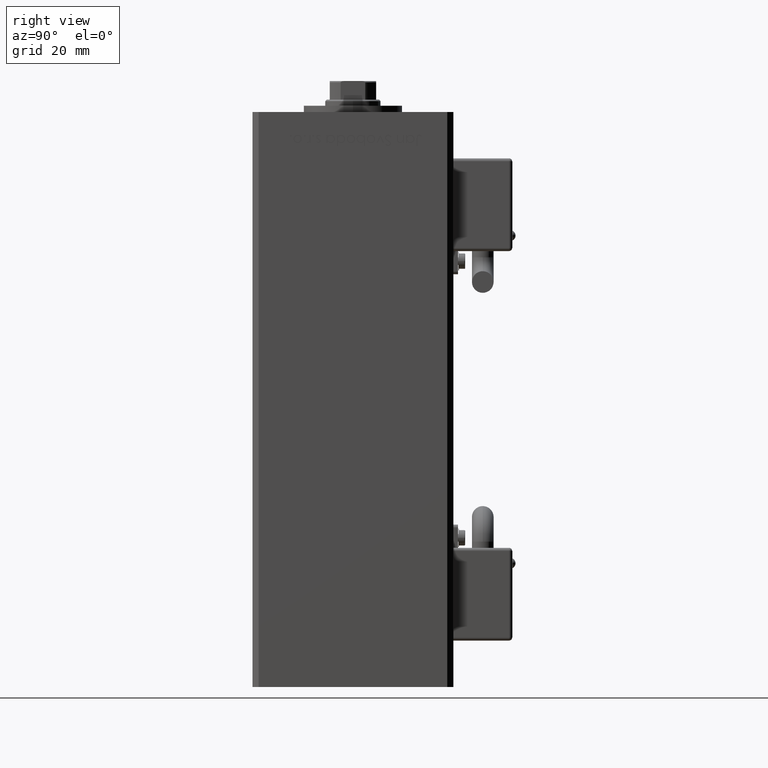
[diagram: clean part render]
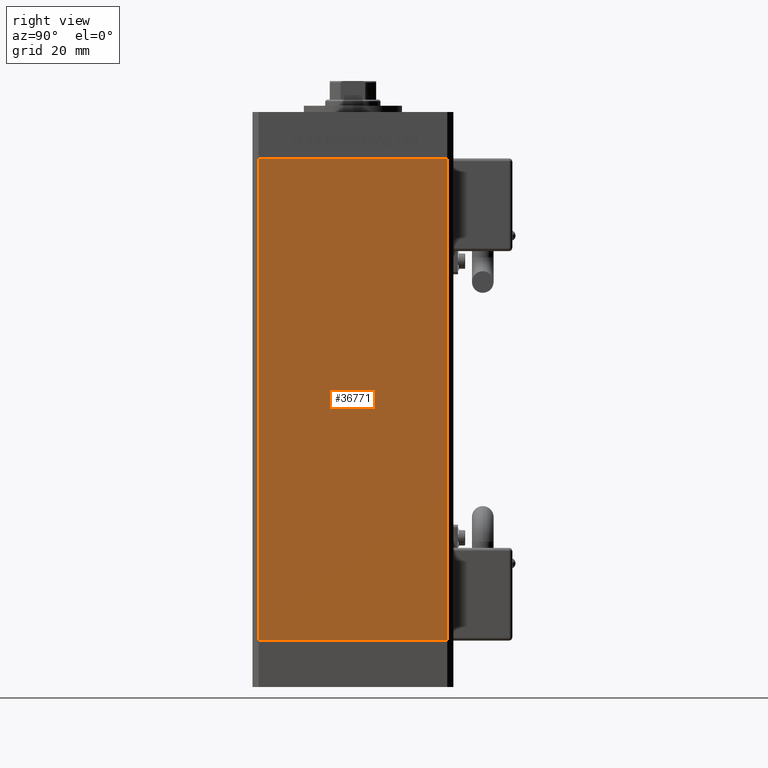
[diagram: same view with one face highlighted and labeled with its STEP entity id]
A machine part, right view. The second image highlights one B-rep face of the part: STEP entity #36771.
In plain terms, the highlighted planar face has unit normal (1, -0, 0).
Its self-contained STEP definition (entity closure, byte-faithful):
#183 = CARTESIAN_POINT ( 'NONE',  ( 37.50000000000000711, 30.50000000000000000, 156.0000000000000000 ) ) ;
#501 = ORIENTED_EDGE ( 'NONE', *, *, #16619, .T. ) ;
#503 = FACE_OUTER_BOUND ( 'NONE', #36705, .T. ) ;
#4969 = PLANE ( 'NONE',  #8134 ) ;
#5512 = VERTEX_POINT ( 'NONE', #34273 ) ;
#7882 = VERTEX_POINT ( 'NONE', #40748 ) ;
#8134 = AXIS2_PLACEMENT_3D ( 'NONE', #17248, #47683, #42677 ) ;
#8351 = VECTOR ( 'NONE', #39550, 1000.000000000000000 ) ;
#15202 = LINE ( 'NONE', #32246, #34498 ) ;
#16619 = EDGE_CURVE ( 'NONE', #7882, #5512, #15202, .T. ) ;
#17248 = CARTESIAN_POINT ( 'NONE',  ( 37.50000000000000711, 30.50000000000000000, 156.0000000000000000 ) ) ;
#21627 = ORIENTED_EDGE ( 'NONE', *, *, #27277, .T. ) ;
#25452 = ORIENTED_EDGE ( 'NONE', *, *, #50963, .F. ) ;
#27277 = EDGE_CURVE ( 'NONE', #5512, #31554, #49029, .T. ) ;
#30257 = VECTOR ( 'NONE', #50668, 1000.000000000000000 ) ;
#30324 = LINE ( 'NONE', #52635, #38502 ) ;
#31264 = CARTESIAN_POINT ( 'NONE',  ( 37.49999999999999289, -30.50000000000000000, 0.000000000000000000 ) ) ;
#31554 = VERTEX_POINT ( 'NONE', #31264 ) ;
#32246 = CARTESIAN_POINT ( 'NONE',  ( 37.50000000000000711, 30.50000000000000000, 156.0000000000000000 ) ) ;
#34273 = CARTESIAN_POINT ( 'NONE',  ( 37.49999999999999289, -30.50000000000000000, 156.0000000000000000 ) ) ;
#34498 = VECTOR ( 'NONE', #49281, 1000.000000000000000 ) ;
#36705 = EDGE_LOOP ( 'NONE', ( #49879, #25452, #501, #21627 ) ) ;
#36771 = ADVANCED_FACE ( 'NONE', ( #503 ), #4969, .T. ) ;
#38502 = VECTOR ( 'NONE', #42891, 1000.000000000000000 ) ;
#39550 = DIRECTION ( 'NONE',  ( -0.000000000000000000, -0.000000000000000000, -1.000000000000000000 ) ) ;
#40748 = CARTESIAN_POINT ( 'NONE',  ( 37.50000000000000711, 30.50000000000000000, 156.0000000000000000 ) ) ;
#40889 = EDGE_CURVE ( 'NONE', #54471, #31554, #30324, .T. ) ;
#42677 = DIRECTION ( 'NONE',  ( 2.275047181608927644E-16, 1.000000000000000000, 0.000000000000000000 ) ) ;
#42891 = DIRECTION ( 'NONE',  ( -2.275047181608927644E-16, -1.000000000000000000, 0.000000000000000000 ) ) ;
#43022 = CARTESIAN_POINT ( 'NONE',  ( 37.50000000000000711, 30.50000000000000000, 0.000000000000000000 ) ) ;
#47076 = LINE ( 'NONE', #183, #8351 ) ;
#47683 = DIRECTION ( 'NONE',  ( 1.000000000000000000, -2.275047181608927644E-16, 0.000000000000000000 ) ) ;
#49029 = LINE ( 'NONE', #49838, #30257 ) ;
#49281 = DIRECTION ( 'NONE',  ( -2.275047181608927644E-16, -1.000000000000000000, 0.000000000000000000 ) ) ;
#49838 = CARTESIAN_POINT ( 'NONE',  ( 37.49999999999999289, -30.50000000000000000, 156.0000000000000000 ) ) ;
#49879 = ORIENTED_EDGE ( 'NONE', *, *, #40889, .F. ) ;
#50668 = DIRECTION ( 'NONE',  ( -0.000000000000000000, -0.000000000000000000, -1.000000000000000000 ) ) ;
#50963 = EDGE_CURVE ( 'NONE', #7882, #54471, #47076, .T. ) ;
#52635 = CARTESIAN_POINT ( 'NONE',  ( 37.50000000000000711, 30.50000000000000000, 0.000000000000000000 ) ) ;
#54471 = VERTEX_POINT ( 'NONE', #43022 ) ;